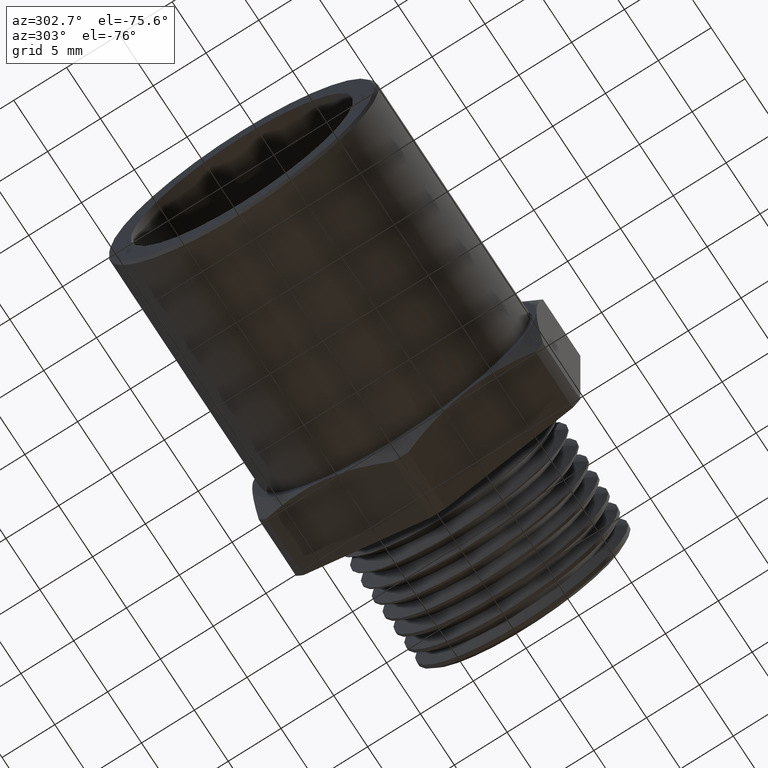
[diagram: clean part render]
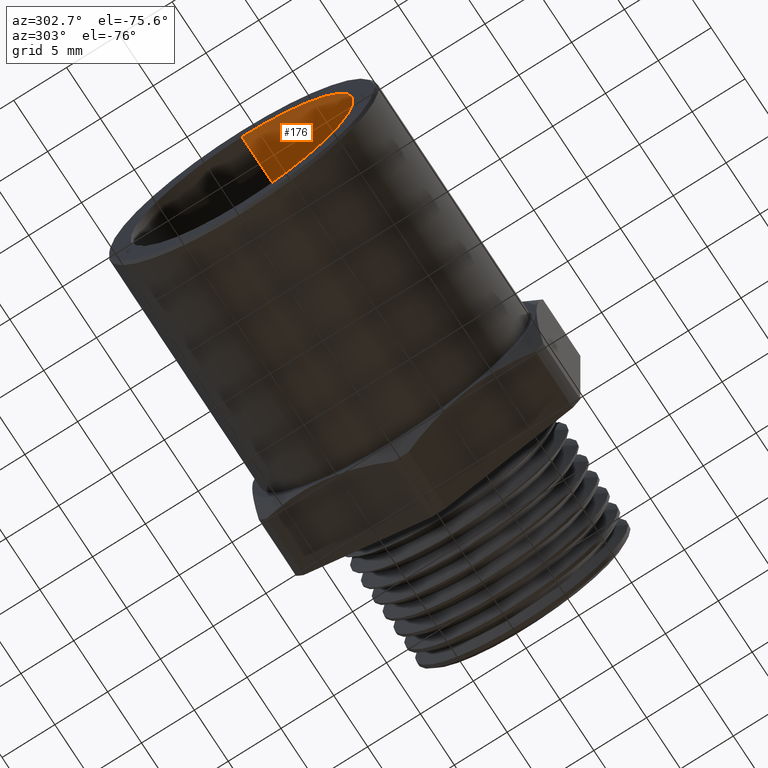
[diagram: same view with one face highlighted and labeled with its STEP entity id]
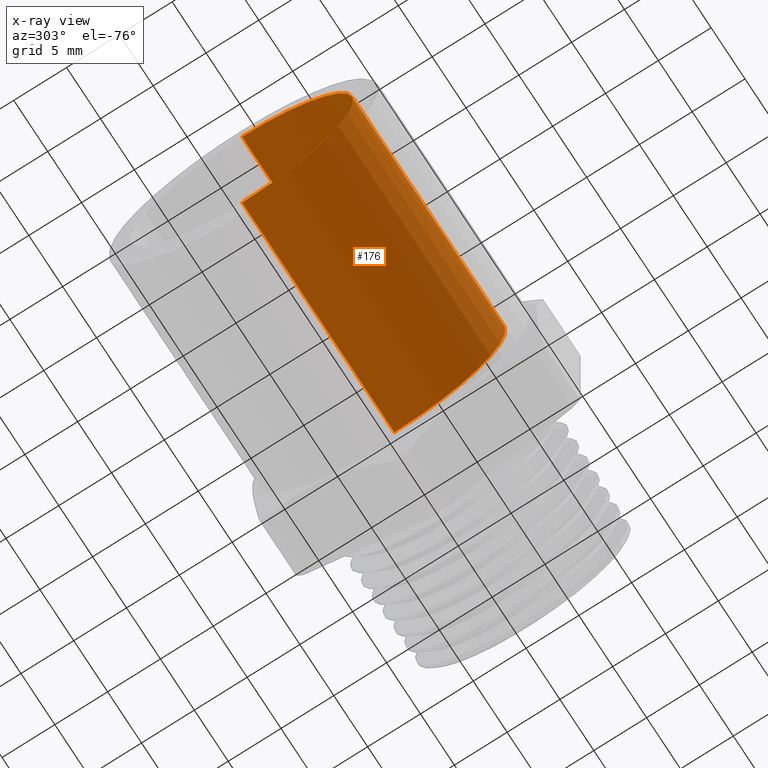
[diagram: x-ray of the same camera — body ghosted, the highlighted face saturated]
A machine part, auxiliary view. The second image highlights one B-rep face of the part: STEP entity #176.
The next image is the same camera in x-ray: the body ghosted, the highlighted face saturated — about 1% of this face is hidden behind the body in this view.
In plain terms, the highlighted cylindrical surface (partial cylindrical patch) has radius 10.541 mm, axis along (-1, 0, 0).
Its self-contained STEP definition (entity closure, byte-faithful):
#146 = VERTEX_POINT ( 'NONE', #663 ) ;
#147 = ORIENTED_EDGE ( 'NONE', *, *, #175, .T. ) ;
#154 = EDGE_CURVE ( 'NONE', #2660, #146, #660, .T. ) ;
#161 = ORIENTED_EDGE ( 'NONE', *, *, #154, .T. ) ;
#170 = EDGE_LOOP ( 'NONE', ( #2651, #161, #147, #2652 ) ) ;
#173 = EDGE_CURVE ( 'NONE', #2660, #2175, #683, .T. ) ;
#175 = EDGE_CURVE ( 'NONE', #146, #2680, #742, .T. ) ;
#176 = ADVANCED_FACE ( 'NONE', ( #734 ), #733, .F. ) ;
#657 = DIRECTION ( 'NONE',  ( -1.000000000000000000, 0.0000000000000000000, 0.0000000000000000000 ) ) ;
#658 = VECTOR ( 'NONE', #657, 39.37007874015748100 ) ;
#659 = CARTESIAN_POINT ( 'NONE',  ( -0.5911096051061856000, 5.082284216461516900E-017, -0.4150000000000000900 ) ) ;
#660 = LINE ( 'NONE', #659, #658 ) ;
#663 = CARTESIAN_POINT ( 'NONE',  ( -1.649999999999999700, 5.082284216461516900E-017, -0.4150000000000000900 ) ) ;
#679 = DIRECTION ( 'NONE',  ( 0.0000000000000000000, 0.0000000000000000000, 1.000000000000000000 ) ) ;
#680 = DIRECTION ( 'NONE',  ( -1.000000000000000000, 0.0000000000000000000, 0.0000000000000000000 ) ) ;
#681 = CARTESIAN_POINT ( 'NONE',  ( -0.7650000000000001200, 0.0000000000000000000, 0.0000000000000000000 ) ) ;
#682 = AXIS2_PLACEMENT_3D ( 'NONE', #681, #680, #679 ) ;
#683 = CIRCLE ( 'NONE', #682, 0.4150000000000000900 ) ;
#728 = DIRECTION ( 'NONE',  ( 0.0000000000000000000, 0.0000000000000000000, 1.000000000000000000 ) ) ;
#729 = DIRECTION ( 'NONE',  ( -1.000000000000000000, 0.0000000000000000000, 0.0000000000000000000 ) ) ;
#730 = CARTESIAN_POINT ( 'NONE',  ( -0.5911096051061856000, 0.0000000000000000000, 0.0000000000000000000 ) ) ;
#731 = AXIS2_PLACEMENT_3D ( 'NONE', #730, #729, #728 ) ;
#733 = CYLINDRICAL_SURFACE ( 'NONE', #731, 0.4150000000000000900 ) ;
#734 = FACE_OUTER_BOUND ( 'NONE', #170, .T. ) ;
#735 = DIRECTION ( 'NONE',  ( 0.0000000000000000000, 0.0000000000000000000, 1.000000000000000000 ) ) ;
#736 = DIRECTION ( 'NONE',  ( -1.000000000000000000, 0.0000000000000000000, 0.0000000000000000000 ) ) ;
#737 = CARTESIAN_POINT ( 'NONE',  ( -1.649999999999999700, 0.0000000000000000000, 0.0000000000000000000 ) ) ;
#738 = AXIS2_PLACEMENT_3D ( 'NONE', #737, #736, #735 ) ;
#742 = CIRCLE ( 'NONE', #738, 0.4150000000000000900 ) ;
#1252 = CARTESIAN_POINT ( 'NONE',  ( -0.7650000000000001200, 0.0000000000000000000, 0.4150000000000000900 ) ) ;
#2076 = CARTESIAN_POINT ( 'NONE',  ( -0.7650000000000001200, 5.082284216461516900E-017, -0.4150000000000000900 ) ) ;
#2077 = DIRECTION ( 'NONE',  ( -1.000000000000000000, 0.0000000000000000000, 0.0000000000000000000 ) ) ;
#2078 = VECTOR ( 'NONE', #2077, 39.37007874015748100 ) ;
#2079 = CARTESIAN_POINT ( 'NONE',  ( -0.5911096051061856000, 0.0000000000000000000, 0.4150000000000000900 ) ) ;
#2080 = LINE ( 'NONE', #2079, #2078 ) ;
#2104 = CARTESIAN_POINT ( 'NONE',  ( -1.649999999999999700, 0.0000000000000000000, 0.4150000000000000900 ) ) ;
#2175 = VERTEX_POINT ( 'NONE', #1252 ) ;
#2651 = ORIENTED_EDGE ( 'NONE', *, *, #173, .F. ) ;
#2652 = ORIENTED_EDGE ( 'NONE', *, *, #2655, .F. ) ;
#2655 = EDGE_CURVE ( 'NONE', #2175, #2680, #2080, .T. ) ;
#2660 = VERTEX_POINT ( 'NONE', #2076 ) ;
#2680 = VERTEX_POINT ( 'NONE', #2104 ) ;